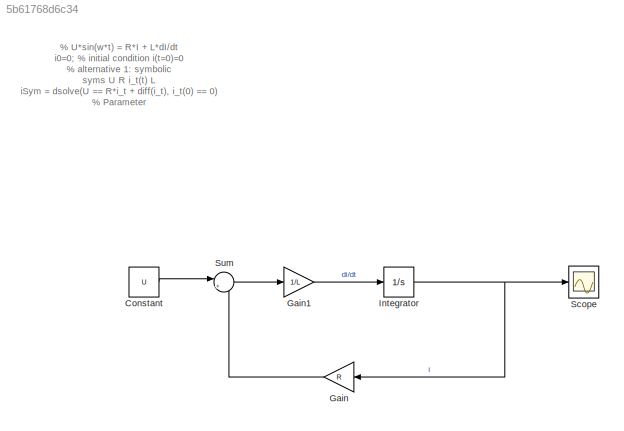
MODEL slx_5b61768d6c34
KIND model
CONFIG AbsTol = auto
CONFIG EnableMultiTasking = off
CONFIG FixedStep = auto
CONFIG MaxStep = auto
CONFIG MinStep = auto
CONFIG RelTol = 1e-3
CONFIG SampleTimeConstraint = Unconstrained
CONFIG SolverName = VariableStepAuto
CONFIG StartTime = 0.0
CONFIG StopTime = te(2)
BLOCK [Constant] Constant
  Value = U
BLOCK [Gain] Gain
  Gain = R
  NameLocation = top
BLOCK [Gain] Gain1
  Gain = 1/L
BLOCK [Integrator] Integrator
BLOCK [Scope] Scope
  Floating = off
  NumInputPorts = 1
  ScopeSpecificationString = Simulink.scopes.TimeScopeBlockCfg('CurrentConfiguration', extmgr.ConfigurationSet(extmgr.Configuration('Core','General UI',true),extmgr.Configuration('Core','Source UI',true),extmgr.Configuration('Sources','WiredSimulink',true),extmgr.Configuration('Visuals','Time Domain',true,'SerializedDisplays',{struct('MinYLimReal','-0.12416','MaxYLimReal','1.11742','YLabelReal','','MinYLimMag','0.00000','MaxY...<+1465ch>
BLOCK [Sum] Sum
  Inputs = |+-
ANNOTATION (root): % U*sin(w*t) = R*I + L*dI/dt i0=0; % initial condition i(t=0)=0 % alternative 1: symbolic syms U R i_t(t) L iSym = dsolve(U == R*i_t + diff(i_t), i_t(0) == 0) % Parameter U=1; % voltage L=1e-3; % inductance R=1; % resistance te= [0 5*L/R]; % simulation time: te=5*tau
LINE Constant:1 -> Sum:1
LINE Gain1:1 -> Integrator:1
LINE Gain:1 -> Sum:2
NET Integrator:1 -> Gain:1, Scope:1
LINE Sum:1 -> Gain1:1
note: NET lines group one-source signal fan-out (src -> all destinations, sorted); 1:1 wires keep LINE
